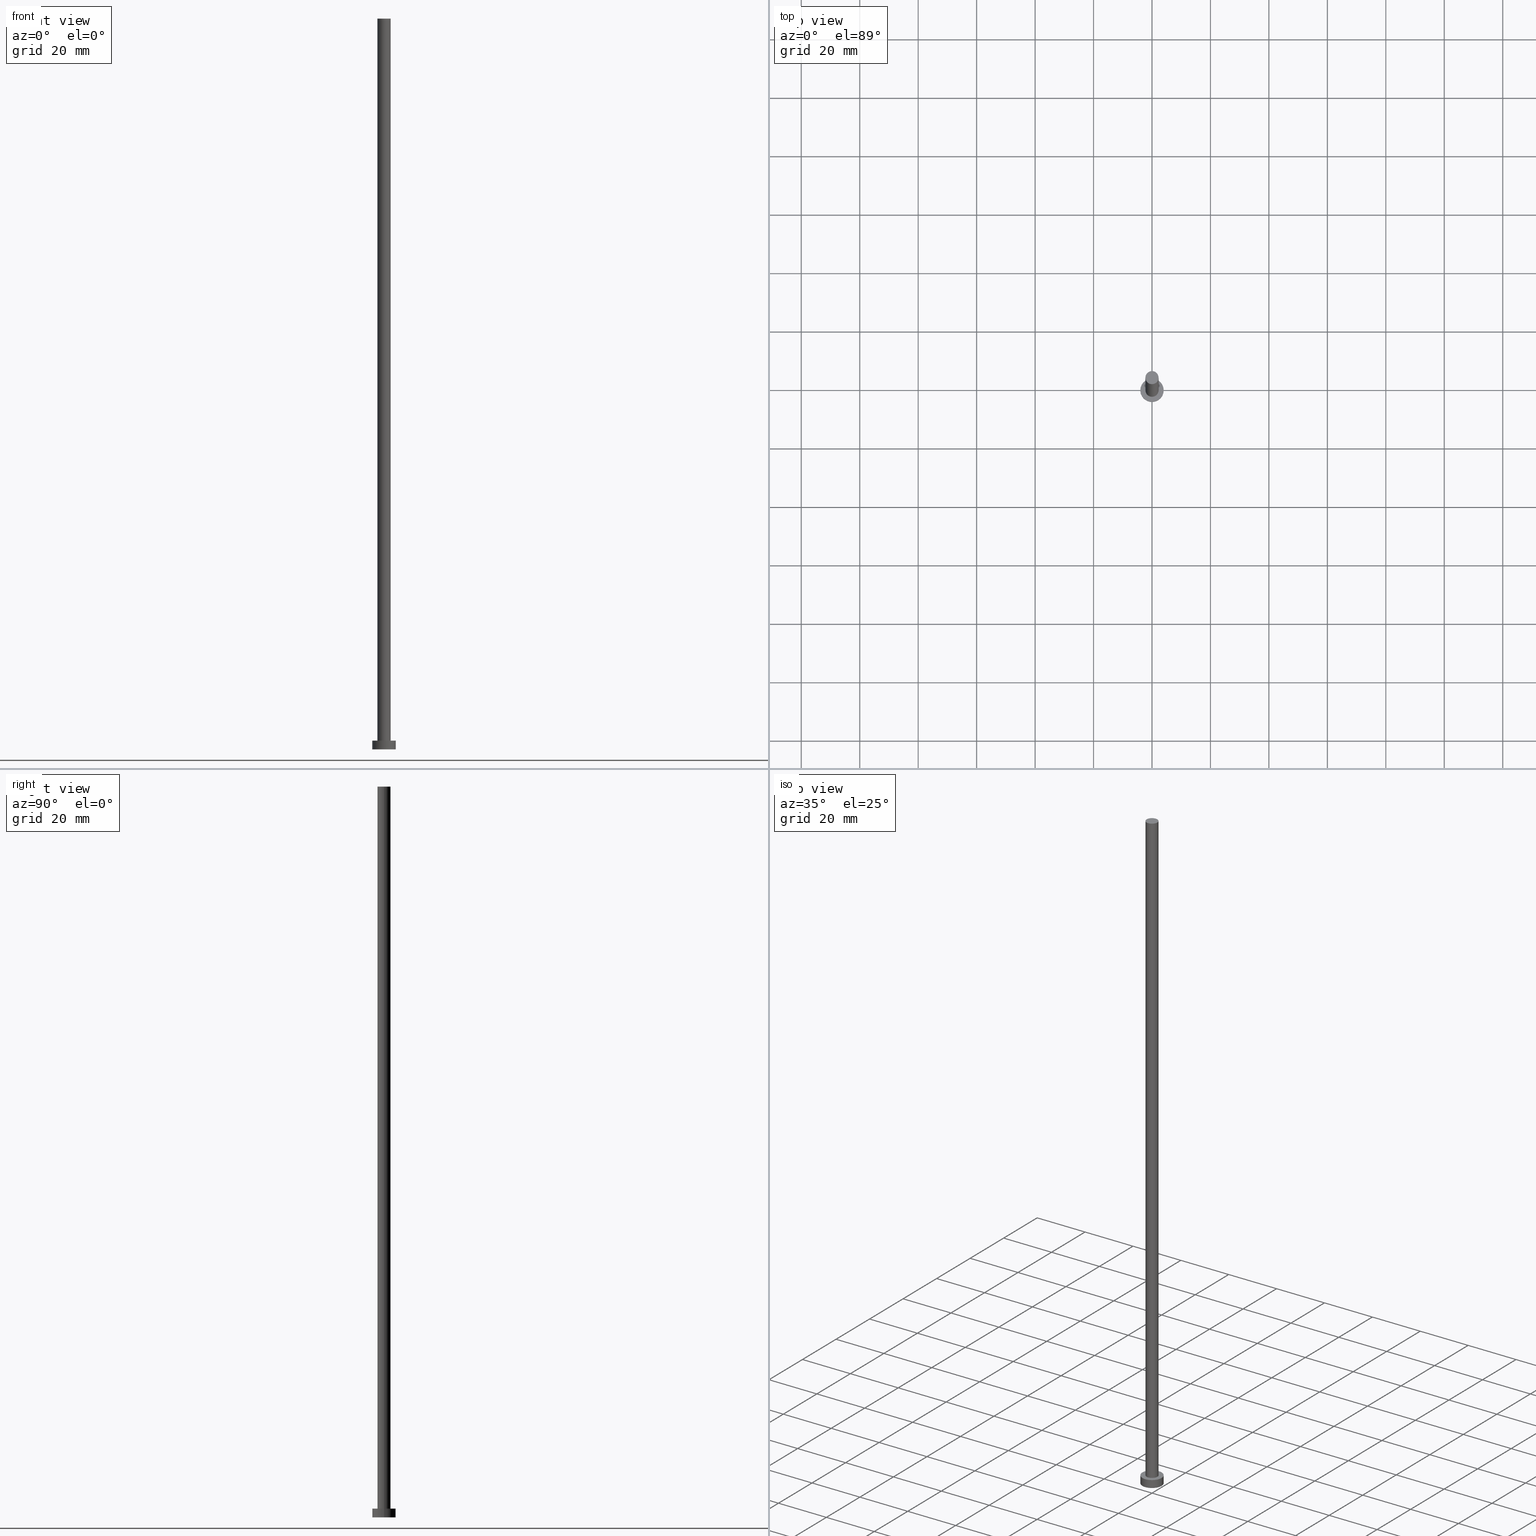
[diagram: canonical four-view strip — front | top / right | iso, engineering-drawing reading convention]
A machine part, canonical four-view strip (front | top / right | iso — engineering-drawing reading convention). The complete STEP part file that produces these views, byte-faithful:
ISO-10303-21;
HEADER;
FILE_DESCRIPTION (( 'STEP AP203' ),
    '1' );
FILE_NAME ('cde8.STEP',
    '2023-02-13T15:04:12',
    ( '' ),
    ( '' ),
    'SwSTEP 2.0',
    'SolidWorks 2019',
    '' );
FILE_SCHEMA (( 'CONFIG_CONTROL_DESIGN' ));
ENDSEC;

DATA;
#1 = DIRECTION ( 'NONE',  ( -0.000000000000000000, -0.000000000000000000, -1.000000000000000000 ) ) ;
#2 = SHAPE_DEFINITION_REPRESENTATION ( #26, #214 ) ;
#3 = AXIS2_PLACEMENT_3D ( 'NONE', #116, #132, #244 ) ;
#4 = DIRECTION ( 'NONE',  ( -0.000000000000000000, -0.000000000000000000, -1.000000000000000000 ) ) ;
#5 = FACE_BOUND ( 'NONE', #191, .T. ) ;
#6 = CARTESIAN_POINT ( 'NONE',  ( 0.000000000000000000, 0.000000000000000000, 250.0000000000000000 ) ) ;
#7 = APPROVAL_STATUS ( 'not_yet_approved' ) ;
#8 = EDGE_CURVE ( 'NONE', #98, #139, #167, .T. ) ;
#9 = COORDINATED_UNIVERSAL_TIME_OFFSET ( 1, 0, .AHEAD. ) ;
#10 = EDGE_CURVE ( 'NONE', #94, #254, #108, .T. ) ;
#11 = AXIS2_PLACEMENT_3D ( 'NONE', #42, #123, #67 ) ;
#12 = PERSON_AND_ORGANIZATION_ROLE ( 'design_owner' ) ;
#13 = ORIENTED_EDGE ( 'NONE', *, *, #29, .F. ) ;
#14 = ADVANCED_FACE ( 'NONE', ( #137 ), #16, .T. ) ;
#15 = VERTEX_POINT ( 'NONE', #251 ) ;
#16 = CYLINDRICAL_SURFACE ( 'NONE', #54, 4.000000000000000000 ) ;
#17 = EDGE_LOOP ( 'NONE', ( #152, #121 ) ) ;
#18 = CC_DESIGN_PERSON_AND_ORGANIZATION_ASSIGNMENT ( #208, #224, ( #130 ) ) ;
#19 = AXIS2_PLACEMENT_3D ( 'NONE', #44, #101, #241 ) ;
#20 = EDGE_LOOP ( 'NONE', ( #37, #189, #235, #135 ) ) ;
#21 = CARTESIAN_POINT ( 'NONE',  ( 0.000000000000000000, 0.000000000000000000, 250.0000000000000000 ) ) ;
#22 = CYLINDRICAL_SURFACE ( 'NONE', #105, 2.250000000000000000 ) ;
#23 = FACE_OUTER_BOUND ( 'NONE', #175, .T. ) ;
#24 = FACE_OUTER_BOUND ( 'NONE', #178, .T. ) ;
#25 = CARTESIAN_POINT ( 'NONE',  ( 2.250000000000000000, 2.755455298081544285E-16, 250.0000000000000000 ) ) ;
#26 = PRODUCT_DEFINITION_SHAPE ( 'NONE', 'NONE',  #130 ) ;
#27 = EDGE_CURVE ( 'NONE', #15, #97, #28, .T. ) ;
#28 = CIRCLE ( 'NONE', #176, 4.000000000000000000 ) ;
#29 = EDGE_CURVE ( 'NONE', #254, #94, #159, .T. ) ;
#30 = CALENDAR_DATE ( 2023, 13, 2 ) ;
#31 = LOCAL_TIME ( 16, 4, 12.00000000000000000, #147 ) ;
#32 = APPLICATION_CONTEXT ( 'configuration controlled 3d designs of mechanical parts and assemblies' ) ;
#33 = EDGE_CURVE ( 'NONE', #98, #254, #66, .T. ) ;
#34 = VERTEX_POINT ( 'NONE', #179 ) ;
#35 = VERTEX_POINT ( 'NONE', #142 ) ;
#36 = LOCAL_TIME ( 16, 4, 12.00000000000000000, #9 ) ;
#37 = ORIENTED_EDGE ( 'NONE', *, *, #239, .F. ) ;
#38 = APPROVAL ( #90, 'NEUR�EN�' ) ;
#39 = DIRECTION ( 'NONE',  ( 1.000000000000000000, 0.000000000000000000, 0.000000000000000000 ) ) ;
#40 = CARTESIAN_POINT ( 'NONE',  ( 0.000000000000000000, 0.000000000000000000, 250.0000000000000000 ) ) ;
#41 = CC_DESIGN_SECURITY_CLASSIFICATION ( #55, ( #79 ) ) ;
#42 = CARTESIAN_POINT ( 'NONE',  ( 0.000000000000000000, 0.000000000000000000, 3.000000000000000000 ) ) ;
#43 = CARTESIAN_POINT ( 'NONE',  ( 2.250000000000000000, 2.755455298081544285E-16, 3.000000000000000000 ) ) ;
#44 = CARTESIAN_POINT ( 'NONE',  ( 0.000000000000000000, 0.000000000000000000, 0.000000000000000000 ) ) ;
#45 = CIRCLE ( 'NONE', #19, 4.000000000000000000 ) ;
#46 = ORGANIZATION ( 'NEUR�EN�', 'NEUR�EN�', '' ) ;
#47 = DIRECTION ( 'NONE',  ( 1.000000000000000000, 0.000000000000000000, 0.000000000000000000 ) ) ;
#48 = DATE_AND_TIME ( #88, #36 ) ;
#49 = AXIS2_PLACEMENT_3D ( 'NONE', #240, #124, #128 ) ;
#50 = APPROVAL_STATUS ( 'not_yet_approved' ) ;
#51 = LOCAL_TIME ( 16, 4, 12.00000000000000000, #70 ) ;
#52 = CALENDAR_DATE ( 2023, 13, 2 ) ;
#53 = APPLICATION_PROTOCOL_DEFINITION ( 'international standard', 'config_control_design', 1994, #32 ) ;
#54 = AXIS2_PLACEMENT_3D ( 'NONE', #96, #173, #138 ) ;
#55 = SECURITY_CLASSIFICATION ( '', '', #222 ) ;
#56 = PRODUCT_RELATED_PRODUCT_CATEGORY ( 'detail', '', ( #136 ) ) ;
#57 = APPROVAL_DATE_TIME ( #192, #223 ) ;
#58 = DIRECTION ( 'NONE',  ( 1.000000000000000000, 0.000000000000000000, 0.000000000000000000 ) ) ;
#59 = CARTESIAN_POINT ( 'NONE',  ( 0.000000000000000000, 0.000000000000000000, 250.0000000000000000 ) ) ;
#60 = CIRCLE ( 'NONE', #225, 4.000000000000000000 ) ;
#61 = DIRECTION ( 'NONE',  ( 0.000000000000000000, 0.000000000000000000, 1.000000000000000000 ) ) ;
#62 = ORIENTED_EDGE ( 'NONE', *, *, #216, .F. ) ;
#63 = DIRECTION ( 'NONE',  ( 1.000000000000000000, 0.000000000000000000, 0.000000000000000000 ) ) ;
#64 = CC_DESIGN_PERSON_AND_ORGANIZATION_ASSIGNMENT ( #207, #186, ( #55 ) ) ;
#65 = DIRECTION ( 'NONE',  ( -0.000000000000000000, -0.000000000000000000, -1.000000000000000000 ) ) ;
#66 = LINE ( 'NONE', #238, #68 ) ;
#67 = DIRECTION ( 'NONE',  ( -1.000000000000000000, 0.000000000000000000, 0.000000000000000000 ) ) ;
#68 = VECTOR ( 'NONE', #65, 1000.000000000000000 ) ;
#69 = FACE_OUTER_BOUND ( 'NONE', #17, .T. ) ;
#70 = COORDINATED_UNIVERSAL_TIME_OFFSET ( 1, 0, .AHEAD. ) ;
#71 = MECHANICAL_CONTEXT ( 'NONE', #95, 'mechanical' ) ;
#72 =( NAMED_UNIT ( * ) SI_UNIT ( $, .STERADIAN. ) SOLID_ANGLE_UNIT ( ) );
#73 = PERSON_AND_ORGANIZATION ( #112, #46 ) ;
#74 = ADVANCED_FACE ( 'NONE', ( #24 ), #183, .F. ) ;
#75 = ORIENTED_EDGE ( 'NONE', *, *, #29, .T. ) ;
#76 =( GEOMETRIC_REPRESENTATION_CONTEXT ( 3 ) GLOBAL_UNCERTAINTY_ASSIGNED_CONTEXT ( ( #102 ) ) GLOBAL_UNIT_ASSIGNED_CONTEXT ( ( #206, #110, #72 ) ) REPRESENTATION_CONTEXT ( 'NONE', 'WORKASPACE' ) );
#77 = CARTESIAN_POINT ( 'NONE',  ( 0.000000000000000000, 0.000000000000000000, 3.000000000000000000 ) ) ;
#78 = ORIENTED_EDGE ( 'NONE', *, *, #198, .T. ) ;
#79 = PRODUCT_DEFINITION_FORMATION_WITH_SPECIFIED_SOURCE ( 'LIBOVOLN�', '', #136, .NOT_KNOWN. ) ;
#80 = ORIENTED_EDGE ( 'NONE', *, *, #114, .F. ) ;
#81 = DIRECTION ( 'NONE',  ( -0.000000000000000000, -0.000000000000000000, -1.000000000000000000 ) ) ;
#82 = DIRECTION ( 'NONE',  ( -0.000000000000000000, -0.000000000000000000, -1.000000000000000000 ) ) ;
#83 = DIRECTION ( 'NONE',  ( 0.000000000000000000, 0.000000000000000000, 1.000000000000000000 ) ) ;
#84 = EDGE_CURVE ( 'NONE', #139, #98, #149, .T. ) ;
#85 = DIRECTION ( 'NONE',  ( 1.000000000000000000, 0.000000000000000000, 0.000000000000000000 ) ) ;
#86 = CARTESIAN_POINT ( 'NONE',  ( 4.000000000000000000, 4.898587196589412829E-16, 3.000000000000000000 ) ) ;
#87 = CIRCLE ( 'NONE', #228, 4.000000000000000000 ) ;
#88 = CALENDAR_DATE ( 2023, 13, 2 ) ;
#89 = DATE_TIME_ROLE ( 'classification_date' ) ;
#90 = APPROVAL_STATUS ( 'not_yet_approved' ) ;
#91 = APPROVAL_PERSON_ORGANIZATION ( #248, #38, #113 ) ;
#92 = DATE_AND_TIME ( #30, #51 ) ;
#93 = CARTESIAN_POINT ( 'NONE',  ( -2.250000000000000000, 0.000000000000000000, 3.000000000000000000 ) ) ;
#94 = VERTEX_POINT ( 'NONE', #43 ) ;
#95 = APPLICATION_CONTEXT ( 'configuration controlled 3d designs of mechanical parts and assemblies' ) ;
#96 = CARTESIAN_POINT ( 'NONE',  ( 0.000000000000000000, 0.000000000000000000, 3.000000000000000000 ) ) ;
#97 = VERTEX_POINT ( 'NONE', #86 ) ;
#98 = VERTEX_POINT ( 'NONE', #203 ) ;
#99 = ADVANCED_FACE ( 'NONE', ( #5, #23 ), #158, .T. ) ;
#100 = LINE ( 'NONE', #25, #247 ) ;
#101 = DIRECTION ( 'NONE',  ( 0.000000000000000000, 0.000000000000000000, 1.000000000000000000 ) ) ;
#102 = UNCERTAINTY_MEASURE_WITH_UNIT (LENGTH_MEASURE( 1.000000000000000082E-05 ), #206, 'distance_accuracy_value', 'NONE');
#103 = AXIS2_PLACEMENT_3D ( 'NONE', #141, #163, #220 ) ;
#104 = CARTESIAN_POINT ( 'NONE',  ( 0.000000000000000000, 0.000000000000000000, 0.000000000000000000 ) ) ;
#105 = AXIS2_PLACEMENT_3D ( 'NONE', #180, #1, #160 ) ;
#106 = DIRECTION ( 'NONE',  ( -1.000000000000000000, 0.000000000000000000, 0.000000000000000000 ) ) ;
#107 = CYLINDRICAL_SURFACE ( 'NONE', #185, 2.250000000000000000 ) ;
#108 = CIRCLE ( 'NONE', #201, 2.250000000000000000 ) ;
#109 = LOCAL_TIME ( 16, 4, 12.00000000000000000, #209 ) ;
#110 =( NAMED_UNIT ( * ) PLANE_ANGLE_UNIT ( ) SI_UNIT ( $, .RADIAN. ) );
#111 = EDGE_CURVE ( 'NONE', #34, #35, #45, .T. ) ;
#112 = PERSON ( 'NEUR�EN�', 'NEUR�EN�', 'NEUR�EN�', ('NEUR�EN�'), ('NEUR�EN�'), ('NEUR�EN�') ) ;
#113 = APPROVAL_ROLE ( '' ) ;
#114 = EDGE_CURVE ( 'NONE', #35, #34, #87, .T. ) ;
#115 = CC_DESIGN_APPROVAL ( #223, ( #55 ) ) ;
#116 = CARTESIAN_POINT ( 'NONE',  ( 0.000000000000000000, 0.000000000000000000, 0.000000000000000000 ) ) ;
#117 = MANIFOLD_SOLID_BREP ( 'P�idat vysunut�m3', #195 ) ;
#118 = AXIS2_PLACEMENT_3D ( 'NONE', #59, #153, #231 ) ;
#119 = ORIENTED_EDGE ( 'NONE', *, *, #84, .F. ) ;
#120 = EDGE_LOOP ( 'NONE', ( #62, #157, #250, #232 ) ) ;
#121 = ORIENTED_EDGE ( 'NONE', *, *, #84, .T. ) ;
#122 = EDGE_CURVE ( 'NONE', #15, #34, #242, .T. ) ;
#123 = DIRECTION ( 'NONE',  ( -0.000000000000000000, -0.000000000000000000, -1.000000000000000000 ) ) ;
#124 = DIRECTION ( 'NONE',  ( 0.000000000000000000, 0.000000000000000000, 1.000000000000000000 ) ) ;
#125 = DIRECTION ( 'NONE',  ( -0.000000000000000000, -0.000000000000000000, -1.000000000000000000 ) ) ;
#126 = AXIS2_PLACEMENT_3D ( 'NONE', #197, #217, #85 ) ;
#127 = CARTESIAN_POINT ( 'NONE',  ( 2.250000000000000000, 2.755455298081544285E-16, 250.0000000000000000 ) ) ;
#128 = DIRECTION ( 'NONE',  ( 1.000000000000000000, 0.000000000000000000, -0.000000000000000000 ) ) ;
#129 = PERSON_AND_ORGANIZATION ( #112, #46 ) ;
#130 = PRODUCT_DEFINITION ( 'NEZN�M�', '', #79, #243 ) ;
#131 = PERSON_AND_ORGANIZATION_ROLE ( 'creator' ) ;
#132 = DIRECTION ( 'NONE',  ( 0.000000000000000000, 0.000000000000000000, 1.000000000000000000 ) ) ;
#133 = APPROVAL_DATE_TIME ( #226, #38 ) ;
#134 = ADVANCED_FACE ( 'NONE', ( #218 ), #107, .T. ) ;
#135 = ORIENTED_EDGE ( 'NONE', *, *, #111, .T. ) ;
#136 = PRODUCT ( 'cde8', 'cde8', '', ( #71 ) ) ;
#137 = FACE_OUTER_BOUND ( 'NONE', #20, .T. ) ;
#138 = DIRECTION ( 'NONE',  ( -1.000000000000000000, 0.000000000000000000, 0.000000000000000000 ) ) ;
#139 = VERTEX_POINT ( 'NONE', #127 ) ;
#140 = DIRECTION ( 'NONE',  ( 0.000000000000000000, 0.000000000000000000, 1.000000000000000000 ) ) ;
#141 = CARTESIAN_POINT ( 'NONE',  ( 0.000000000000000000, 0.000000000000000000, 3.000000000000000000 ) ) ;
#142 = CARTESIAN_POINT ( 'NONE',  ( 4.000000000000000000, 4.898587196589412829E-16, 0.000000000000000000 ) ) ;
#143 = FACE_OUTER_BOUND ( 'NONE', #229, .T. ) ;
#144 = VECTOR ( 'NONE', #81, 1000.000000000000000 ) ;
#145 = DIRECTION ( 'NONE',  ( 0.000000000000000000, 0.000000000000000000, 1.000000000000000000 ) ) ;
#146 = CC_DESIGN_DATE_AND_TIME_ASSIGNMENT ( #48, #89, ( #55 ) ) ;
#147 = COORDINATED_UNIVERSAL_TIME_OFFSET ( 1, 0, .AHEAD. ) ;
#148 = DATE_TIME_ROLE ( 'creation_date' ) ;
#149 = CIRCLE ( 'NONE', #211, 2.250000000000000000 ) ;
#150 = DATE_AND_TIME ( #166, #31 ) ;
#151 = COORDINATED_UNIVERSAL_TIME_OFFSET ( 1, 0, .AHEAD. ) ;
#152 = ORIENTED_EDGE ( 'NONE', *, *, #8, .T. ) ;
#153 = DIRECTION ( 'NONE',  ( 0.000000000000000000, 0.000000000000000000, 1.000000000000000000 ) ) ;
#154 = ORIENTED_EDGE ( 'NONE', *, *, #33, .T. ) ;
#155 = CC_DESIGN_APPROVAL ( #38, ( #130 ) ) ;
#156 = ORIENTED_EDGE ( 'NONE', *, *, #33, .F. ) ;
#157 = ORIENTED_EDGE ( 'NONE', *, *, #239, .T. ) ;
#158 = PLANE ( 'NONE',  #103 ) ;
#159 = CIRCLE ( 'NONE', #126, 2.250000000000000000 ) ;
#160 = DIRECTION ( 'NONE',  ( -1.000000000000000000, 0.000000000000000000, 0.000000000000000000 ) ) ;
#161 = CARTESIAN_POINT ( 'NONE',  ( 0.000000000000000000, 0.000000000000000000, 3.000000000000000000 ) ) ;
#162 = CYLINDRICAL_SURFACE ( 'NONE', #11, 4.000000000000000000 ) ;
#163 = DIRECTION ( 'NONE',  ( 0.000000000000000000, 0.000000000000000000, 1.000000000000000000 ) ) ;
#164 = AXIS2_PLACEMENT_3D ( 'NONE', #40, #83, #202 ) ;
#165 = PERSON_AND_ORGANIZATION ( #112, #46 ) ;
#166 = CALENDAR_DATE ( 2023, 13, 2 ) ;
#167 = CIRCLE ( 'NONE', #118, 2.250000000000000000 ) ;
#168 = VECTOR ( 'NONE', #4, 1000.000000000000000 ) ;
#169 = APPLICATION_PROTOCOL_DEFINITION ( 'international standard', 'config_control_design', 1994, #95 ) ;
#170 = ADVANCED_FACE ( 'NONE', ( #69 ), #219, .T. ) ;
#171 = EDGE_LOOP ( 'NONE', ( #119, #78, #194, #156 ) ) ;
#172 = CC_DESIGN_APPROVAL ( #187, ( #79 ) ) ;
#173 = DIRECTION ( 'NONE',  ( -0.000000000000000000, -0.000000000000000000, -1.000000000000000000 ) ) ;
#174 = CC_DESIGN_PERSON_AND_ORGANIZATION_ASSIGNMENT ( #249, #12, ( #136 ) ) ;
#175 = EDGE_LOOP ( 'NONE', ( #215, #210 ) ) ;
#176 = AXIS2_PLACEMENT_3D ( 'NONE', #77, #213, #39 ) ;
#177 = APPROVAL_PERSON_ORGANIZATION ( #165, #223, #188 ) ;
#178 = EDGE_LOOP ( 'NONE', ( #190, #80 ) ) ;
#179 = CARTESIAN_POINT ( 'NONE',  ( -4.000000000000000000, 0.000000000000000000, 0.000000000000000000 ) ) ;
#180 = CARTESIAN_POINT ( 'NONE',  ( 0.000000000000000000, 0.000000000000000000, 250.0000000000000000 ) ) ;
#181 = CARTESIAN_POINT ( 'NONE',  ( -4.000000000000000000, 0.000000000000000000, 3.000000000000000000 ) ) ;
#182 = FACE_OUTER_BOUND ( 'NONE', #120, .T. ) ;
#183 = PLANE ( 'NONE',  #49 ) ;
#184 = PERSON_AND_ORGANIZATION ( #112, #46 ) ;
#185 = AXIS2_PLACEMENT_3D ( 'NONE', #21, #82, #106 ) ;
#186 = PERSON_AND_ORGANIZATION_ROLE ( 'classification_officer' ) ;
#187 = APPROVAL ( #7, 'NEUR�EN�' ) ;
#188 = APPROVAL_ROLE ( '' ) ;
#189 = ORIENTED_EDGE ( 'NONE', *, *, #27, .F. ) ;
#190 = ORIENTED_EDGE ( 'NONE', *, *, #111, .F. ) ;
#191 = EDGE_LOOP ( 'NONE', ( #13, #234 ) ) ;
#192 = DATE_AND_TIME ( #230, #109 ) ;
#193 = ORIENTED_EDGE ( 'NONE', *, *, #8, .F. ) ;
#194 = ORIENTED_EDGE ( 'NONE', *, *, #10, .T. ) ;
#195 = CLOSED_SHELL ( 'NONE', ( #134, #227, #14, #99, #74, #253, #170 ) ) ;
#196 = APPROVAL_PERSON_ORGANIZATION ( #73, #187, #246 ) ;
#197 = CARTESIAN_POINT ( 'NONE',  ( 0.000000000000000000, 0.000000000000000000, 3.000000000000000000 ) ) ;
#198 = EDGE_CURVE ( 'NONE', #139, #94, #100, .T. ) ;
#199 = CARTESIAN_POINT ( 'NONE',  ( 4.000000000000000000, 4.898587196589412829E-16, 3.000000000000000000 ) ) ;
#200 = DIRECTION ( 'NONE',  ( 0.000000000000000000, 0.000000000000000000, 1.000000000000000000 ) ) ;
#201 = AXIS2_PLACEMENT_3D ( 'NONE', #252, #61, #58 ) ;
#202 = DIRECTION ( 'NONE',  ( 1.000000000000000000, 0.000000000000000000, -0.000000000000000000 ) ) ;
#203 = CARTESIAN_POINT ( 'NONE',  ( -2.250000000000000000, 0.000000000000000000, 250.0000000000000000 ) ) ;
#204 = PERSON_AND_ORGANIZATION_ROLE ( 'design_supplier' ) ;
#205 = CC_DESIGN_PERSON_AND_ORGANIZATION_ASSIGNMENT ( #129, #131, ( #79 ) ) ;
#206 =( LENGTH_UNIT ( ) NAMED_UNIT ( * ) SI_UNIT ( .MILLI., .METRE. ) );
#207 = PERSON_AND_ORGANIZATION ( #112, #46 ) ;
#208 = PERSON_AND_ORGANIZATION ( #112, #46 ) ;
#209 = COORDINATED_UNIVERSAL_TIME_OFFSET ( 1, 0, .AHEAD. ) ;
#210 = ORIENTED_EDGE ( 'NONE', *, *, #216, .T. ) ;
#211 = AXIS2_PLACEMENT_3D ( 'NONE', #6, #200, #63 ) ;
#212 = ORIENTED_EDGE ( 'NONE', *, *, #198, .F. ) ;
#213 = DIRECTION ( 'NONE',  ( 0.000000000000000000, 0.000000000000000000, 1.000000000000000000 ) ) ;
#214 = ADVANCED_BREP_SHAPE_REPRESENTATION ( 'cde8', ( #117, #3 ), #76 ) ;
#215 = ORIENTED_EDGE ( 'NONE', *, *, #27, .T. ) ;
#216 = EDGE_CURVE ( 'NONE', #97, #15, #60, .T. ) ;
#217 = DIRECTION ( 'NONE',  ( 0.000000000000000000, 0.000000000000000000, 1.000000000000000000 ) ) ;
#218 = FACE_OUTER_BOUND ( 'NONE', #171, .T. ) ;
#219 = PLANE ( 'NONE',  #164 ) ;
#220 = DIRECTION ( 'NONE',  ( 1.000000000000000000, 0.000000000000000000, -0.000000000000000000 ) ) ;
#221 = APPROVAL_DATE_TIME ( #150, #187 ) ;
#222 = SECURITY_CLASSIFICATION_LEVEL ( 'unclassified' ) ;
#223 = APPROVAL ( #50, 'NEUR�EN�' ) ;
#224 = PERSON_AND_ORGANIZATION_ROLE ( 'creator' ) ;
#225 = AXIS2_PLACEMENT_3D ( 'NONE', #161, #145, #47 ) ;
#226 = DATE_AND_TIME ( #52, #233 ) ;
#227 = ADVANCED_FACE ( 'NONE', ( #182 ), #162, .T. ) ;
#228 = AXIS2_PLACEMENT_3D ( 'NONE', #104, #140, #237 ) ;
#229 = EDGE_LOOP ( 'NONE', ( #212, #193, #154, #75 ) ) ;
#230 = CALENDAR_DATE ( 2023, 13, 2 ) ;
#231 = DIRECTION ( 'NONE',  ( 1.000000000000000000, 0.000000000000000000, 0.000000000000000000 ) ) ;
#232 = ORIENTED_EDGE ( 'NONE', *, *, #122, .F. ) ;
#233 = LOCAL_TIME ( 16, 4, 12.00000000000000000, #151 ) ;
#234 = ORIENTED_EDGE ( 'NONE', *, *, #10, .F. ) ;
#235 = ORIENTED_EDGE ( 'NONE', *, *, #122, .T. ) ;
#236 = CC_DESIGN_DATE_AND_TIME_ASSIGNMENT ( #92, #148, ( #130 ) ) ;
#237 = DIRECTION ( 'NONE',  ( 1.000000000000000000, 0.000000000000000000, 0.000000000000000000 ) ) ;
#238 = CARTESIAN_POINT ( 'NONE',  ( -2.250000000000000000, 0.000000000000000000, 250.0000000000000000 ) ) ;
#239 = EDGE_CURVE ( 'NONE', #97, #35, #255, .T. ) ;
#240 = CARTESIAN_POINT ( 'NONE',  ( 0.000000000000000000, 0.000000000000000000, 0.000000000000000000 ) ) ;
#241 = DIRECTION ( 'NONE',  ( 1.000000000000000000, 0.000000000000000000, 0.000000000000000000 ) ) ;
#242 = LINE ( 'NONE', #181, #168 ) ;
#243 = DESIGN_CONTEXT ( 'detailed design', #32, 'design' ) ;
#244 = DIRECTION ( 'NONE',  ( 1.000000000000000000, 0.000000000000000000, 0.000000000000000000 ) ) ;
#245 = CC_DESIGN_PERSON_AND_ORGANIZATION_ASSIGNMENT ( #184, #204, ( #79 ) ) ;
#246 = APPROVAL_ROLE ( '' ) ;
#247 = VECTOR ( 'NONE', #125, 1000.000000000000000 ) ;
#248 = PERSON_AND_ORGANIZATION ( #112, #46 ) ;
#249 = PERSON_AND_ORGANIZATION ( #112, #46 ) ;
#250 = ORIENTED_EDGE ( 'NONE', *, *, #114, .T. ) ;
#251 = CARTESIAN_POINT ( 'NONE',  ( -4.000000000000000000, 0.000000000000000000, 3.000000000000000000 ) ) ;
#252 = CARTESIAN_POINT ( 'NONE',  ( 0.000000000000000000, 0.000000000000000000, 3.000000000000000000 ) ) ;
#253 = ADVANCED_FACE ( 'NONE', ( #143 ), #22, .T. ) ;
#254 = VERTEX_POINT ( 'NONE', #93 ) ;
#255 = LINE ( 'NONE', #199, #144 ) ;
ENDSEC;
END-ISO-10303-21;
